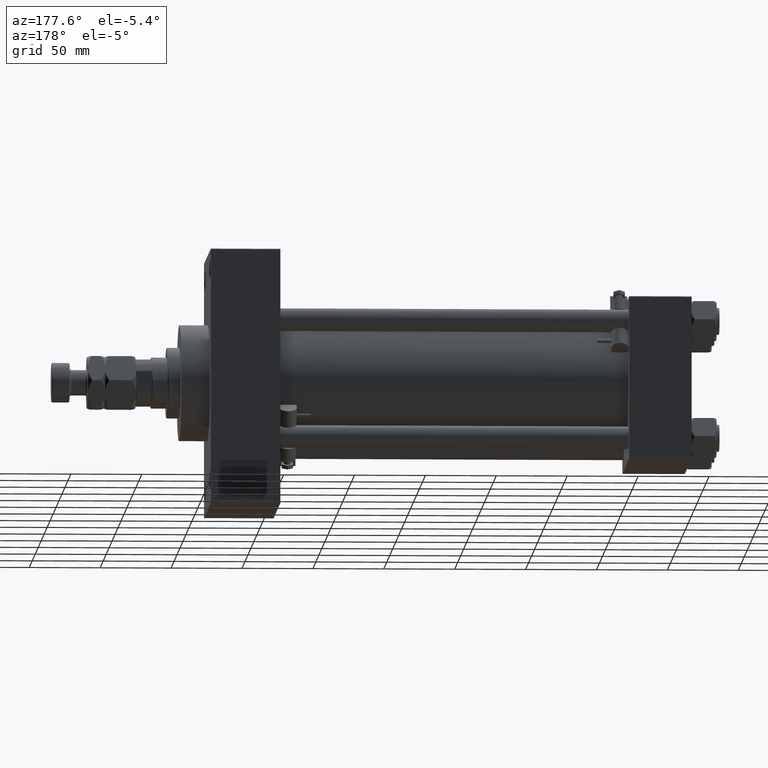
[diagram: clean part render]
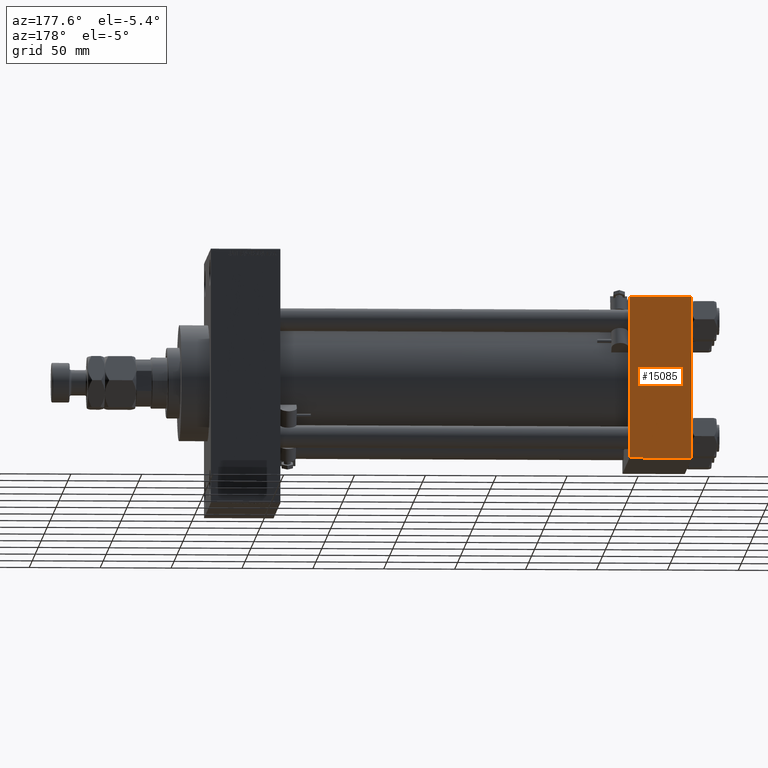
[diagram: same view with one face highlighted and labeled with its STEP entity id]
A machine part, auxiliary view. The second image highlights one B-rep face of the part: STEP entity #15085.
In plain terms, the highlighted planar face has unit normal (0, 1, 0).
Its self-contained STEP definition (entity closure, byte-faithful):
#1305 = LINE ( 'NONE', #32436, #2822 ) ;
#1812 = VERTEX_POINT ( 'NONE', #8942 ) ;
#2540 = CARTESIAN_POINT ( 'NONE',  ( 44.00000000000000000, 57.49999999999999289, 57.50000000000000711 ) ) ;
#2554 = VERTEX_POINT ( 'NONE', #14079 ) ;
#2822 = VECTOR ( 'NONE', #39827, 1000.000000000000000 ) ;
#4020 = CARTESIAN_POINT ( 'NONE',  ( 44.00000000000000000, 57.49999999999999289, -57.00000000000000711 ) ) ;
#5503 = VECTOR ( 'NONE', #29009, 1000.000000000000000 ) ;
#5758 = EDGE_LOOP ( 'NONE', ( #16549, #27289, #19168, #43818 ) ) ;
#7718 = EDGE_CURVE ( 'NONE', #44115, #1812, #1305, .T. ) ;
#8942 = CARTESIAN_POINT ( 'NONE',  ( 44.00000000000000000, 57.49999999999999289, 57.00000000000003553 ) ) ;
#14079 = CARTESIAN_POINT ( 'NONE',  ( 0.000000000000000000, 57.49999999999999289, -57.00000000000000711 ) ) ;
#15085 = ADVANCED_FACE ( 'NONE', ( #31964 ), #20224, .T. ) ;
#16549 = ORIENTED_EDGE ( 'NONE', *, *, #27421, .T. ) ;
#18093 = DIRECTION ( 'NONE',  ( 0.000000000000000000, -0.000000000000000000, 1.000000000000000000 ) ) ;
#19168 = ORIENTED_EDGE ( 'NONE', *, *, #34584, .F. ) ;
#20224 = PLANE ( 'NONE',  #20897 ) ;
#20897 = AXIS2_PLACEMENT_3D ( 'NONE', #2540, #35795, #18093 ) ;
#21614 = CARTESIAN_POINT ( 'NONE',  ( 0.000000000000000000, 57.49999999999999289, 57.50000000000000711 ) ) ;
#23153 = DIRECTION ( 'NONE',  ( 0.000000000000000000, 0.000000000000000000, -1.000000000000000000 ) ) ;
#23903 = DIRECTION ( 'NONE',  ( -1.000000000000000000, 0.000000000000000000, 0.000000000000000000 ) ) ;
#25057 = VECTOR ( 'NONE', #23903, 1000.000000000000000 ) ;
#27289 = ORIENTED_EDGE ( 'NONE', *, *, #44415, .T. ) ;
#27421 = EDGE_CURVE ( 'NONE', #1812, #28440, #30820, .T. ) ;
#28440 = VERTEX_POINT ( 'NONE', #4020 ) ;
#28747 = LINE ( 'NONE', #40235, #25057 ) ;
#29009 = DIRECTION ( 'NONE',  ( 0.000000000000000000, 0.000000000000000000, -1.000000000000000000 ) ) ;
#30820 = LINE ( 'NONE', #46384, #46123 ) ;
#31964 = FACE_OUTER_BOUND ( 'NONE', #5758, .T. ) ;
#32436 = CARTESIAN_POINT ( 'NONE',  ( 44.00000000000000000, 57.49999999999999289, 57.00000000000003553 ) ) ;
#34584 = EDGE_CURVE ( 'NONE', #44115, #2554, #36913, .T. ) ;
#35795 = DIRECTION ( 'NONE',  ( -0.000000000000000000, 1.000000000000000000, 0.000000000000000000 ) ) ;
#36473 = CARTESIAN_POINT ( 'NONE',  ( 0.000000000000000000, 57.49999999999999289, 57.00000000000003553 ) ) ;
#36913 = LINE ( 'NONE', #21614, #5503 ) ;
#39827 = DIRECTION ( 'NONE',  ( 1.000000000000000000, 0.000000000000000000, 0.000000000000000000 ) ) ;
#40235 = CARTESIAN_POINT ( 'NONE',  ( 44.00000000000000000, 57.49999999999999289, -57.00000000000000711 ) ) ;
#43818 = ORIENTED_EDGE ( 'NONE', *, *, #7718, .T. ) ;
#44115 = VERTEX_POINT ( 'NONE', #36473 ) ;
#44415 = EDGE_CURVE ( 'NONE', #28440, #2554, #28747, .T. ) ;
#46123 = VECTOR ( 'NONE', #23153, 1000.000000000000000 ) ;
#46384 = CARTESIAN_POINT ( 'NONE',  ( 44.00000000000000000, 57.49999999999999289, 57.50000000000000711 ) ) ;